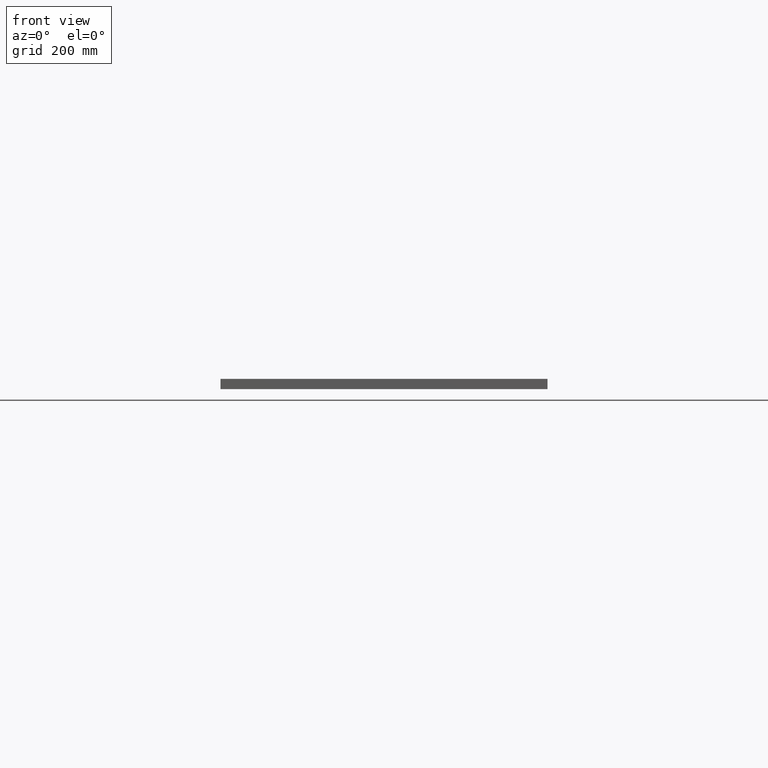
[diagram: clean part render]
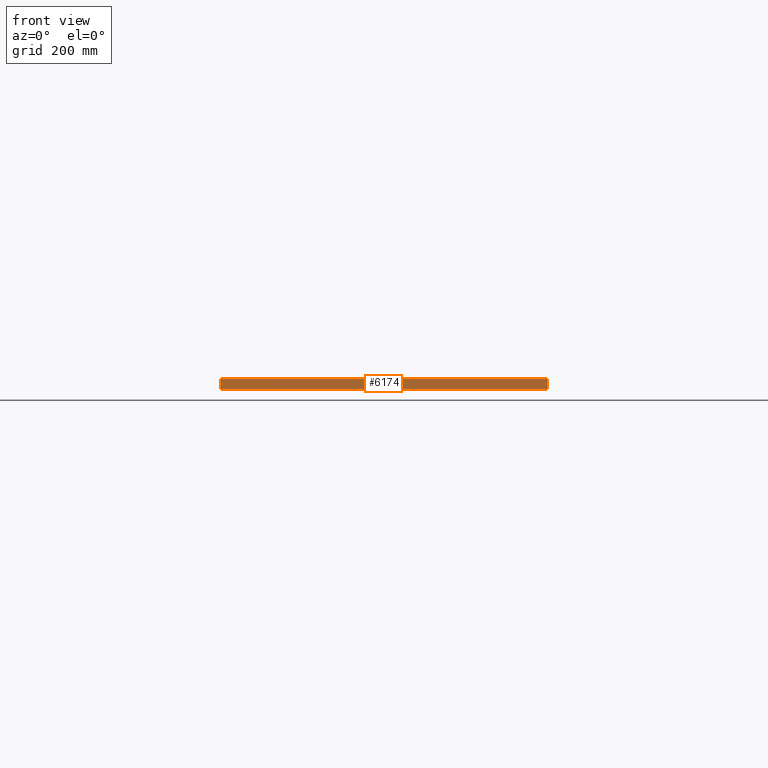
[diagram: same view with one face highlighted and labeled with its STEP entity id]
A machine part, front view. The second image highlights one B-rep face of the part: STEP entity #6174.
In plain terms, the highlighted planar face has unit normal (0, 1, 0).
Its self-contained STEP definition (entity closure, byte-faithful):
#481 = CARTESIAN_POINT ( 'NONE',  ( -299.9999999999999400, -600.0000000000001100, 19.00000000000000000 ) ) ;
#3998 = EDGE_CURVE ( 'NONE', #16130, #44332, #72693, .T. ) ;
#6174 = ADVANCED_FACE ( 'NONE', ( #63398 ), #70280, .F. ) ;
#6781 = DIRECTION ( 'NONE',  ( 0.0000000000000000000, 1.000000000000000000, 0.0000000000000000000 ) ) ;
#11866 = ORIENTED_EDGE ( 'NONE', *, *, #40824, .T. ) ;
#16130 = VERTEX_POINT ( 'NONE', #72697 ) ;
#19914 = DIRECTION ( 'NONE',  ( -0.0000000000000000000, -0.0000000000000000000, -1.000000000000000000 ) ) ;
#25628 = CARTESIAN_POINT ( 'NONE',  ( -299.9999999999999400, -600.0000000000001100, 0.0000000000000000000 ) ) ;
#29843 = CARTESIAN_POINT ( 'NONE',  ( -299.9999999999999400, -600.0000000000001100, 0.0000000000000000000 ) ) ;
#34408 = DIRECTION ( 'NONE',  ( 1.000000000000000000, 0.0000000000000000000, 0.0000000000000000000 ) ) ;
#35691 = DIRECTION ( 'NONE',  ( 1.000000000000000000, 0.0000000000000000000, 0.0000000000000000000 ) ) ;
#37371 = CARTESIAN_POINT ( 'NONE',  ( 300.0000000000001700, -600.0000000000001100, 19.00000000000000000 ) ) ;
#39532 = VERTEX_POINT ( 'NONE', #25628 ) ;
#40193 = CARTESIAN_POINT ( 'NONE',  ( -299.9999999999999400, -600.0000000000001100, 19.00000000000000000 ) ) ;
#40824 = EDGE_CURVE ( 'NONE', #58223, #39532, #52374, .T. ) ;
#41301 = ORIENTED_EDGE ( 'NONE', *, *, #65450, .T. ) ;
#41919 = VECTOR ( 'NONE', #19914, 1000.000000000000000 ) ;
#43009 = VECTOR ( 'NONE', #35691, 1000.000000000000000 ) ;
#43341 = CARTESIAN_POINT ( 'NONE',  ( -299.9999999999999400, -600.0000000000001100, 19.00000000000000000 ) ) ;
#44000 = LINE ( 'NONE', #40193, #57579 ) ;
#44332 = VERTEX_POINT ( 'NONE', #69804 ) ;
#47238 = DIRECTION ( 'NONE',  ( 0.0000000000000000000, -0.0000000000000000000, 1.000000000000000000 ) ) ;
#50978 = DIRECTION ( 'NONE',  ( -0.0000000000000000000, -0.0000000000000000000, -1.000000000000000000 ) ) ;
#52374 = LINE ( 'NONE', #56784, #69593 ) ;
#53525 = ORIENTED_EDGE ( 'NONE', *, *, #3998, .F. ) ;
#56784 = CARTESIAN_POINT ( 'NONE',  ( -299.9999999999999400, -600.0000000000001100, 19.00000000000000000 ) ) ;
#57579 = VECTOR ( 'NONE', #34408, 1000.000000000000000 ) ;
#58223 = VERTEX_POINT ( 'NONE', #43341 ) ;
#63072 = AXIS2_PLACEMENT_3D ( 'NONE', #481, #6781, #47238 ) ;
#63398 = FACE_OUTER_BOUND ( 'NONE', #66270, .T. ) ;
#63552 = ORIENTED_EDGE ( 'NONE', *, *, #71365, .F. ) ;
#65450 = EDGE_CURVE ( 'NONE', #39532, #44332, #73787, .T. ) ;
#66270 = EDGE_LOOP ( 'NONE', ( #41301, #53525, #63552, #11866 ) ) ;
#69593 = VECTOR ( 'NONE', #50978, 1000.000000000000000 ) ;
#69804 = CARTESIAN_POINT ( 'NONE',  ( 300.0000000000001700, -600.0000000000001100, 0.0000000000000000000 ) ) ;
#70280 = PLANE ( 'NONE',  #63072 ) ;
#71365 = EDGE_CURVE ( 'NONE', #58223, #16130, #44000, .T. ) ;
#72693 = LINE ( 'NONE', #37371, #41919 ) ;
#72697 = CARTESIAN_POINT ( 'NONE',  ( 300.0000000000001700, -600.0000000000001100, 19.00000000000000000 ) ) ;
#73787 = LINE ( 'NONE', #29843, #43009 ) ;